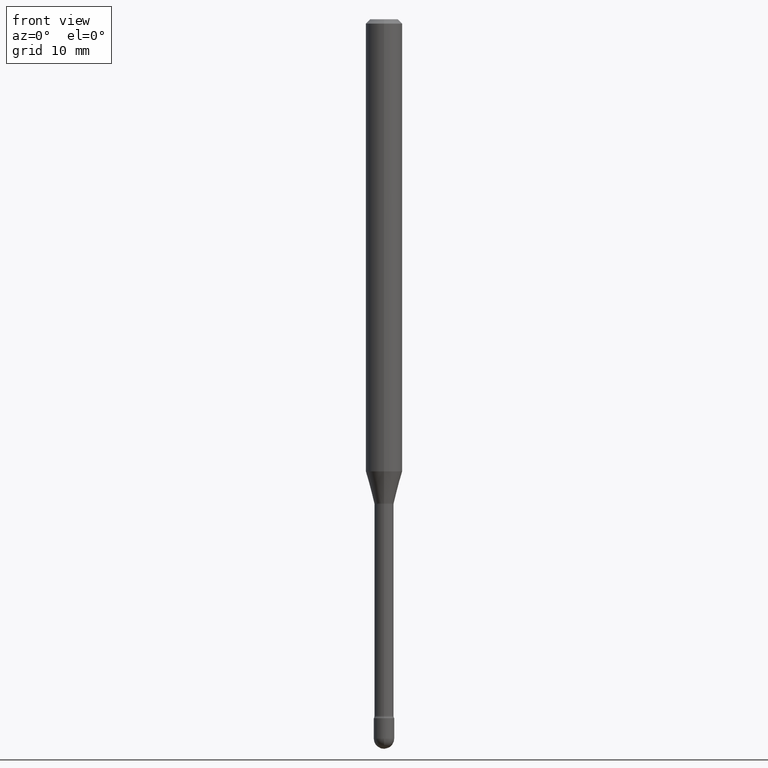
[diagram: clean part render]
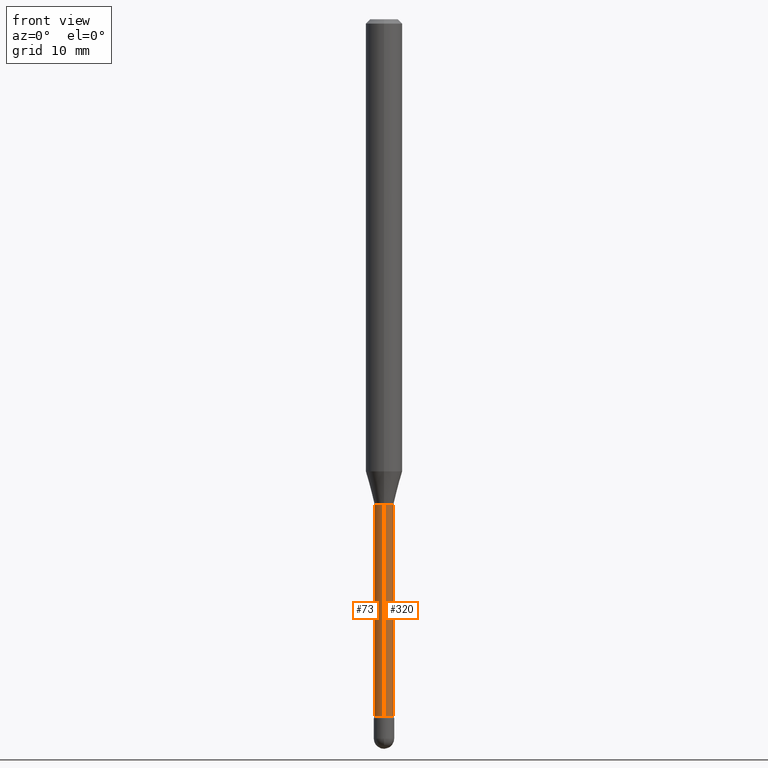
[diagram: same view with one multi-face feature highlighted, each face labeled with its STEP entity id]
A machine part, front view. The highlighted faces form ONE feature: a constant-radius fillet chain: 2 tangent blend faces with common blend radius 0.8357 mm. The faces share edges in the B-rep.
Their STEP definitions:
[1] entity #320 (Cylinder):
#9 = CARTESIAN_POINT ( 'NONE',  ( -2.297394720958201714E-16, -0.03290000000000839475, -2.387345589506696175 ) ) ;
#39 = EDGE_LOOP ( 'NONE', ( #317, #230, #218, #44 ) ) ;
#43 = CARTESIAN_POINT ( 'NONE',  ( -2.297394720958783499E-16, -0.03290000000000003338, 5.929417908583188261E-16 ) ) ;
#44 = ORIENTED_EDGE ( 'NONE', *, *, #298, .F. ) ;
#46 = VECTOR ( 'NONE', #168, 39.37007874015748143 ) ;
#61 = CARTESIAN_POINT ( 'NONE',  ( 4.064354911995957945E-29, -5.802686058534508984E-15, -1.661974787463811332 ) ) ;
#78 = LINE ( 'NONE', #43, #46 ) ;
#83 = VERTEX_POINT ( 'NONE', #557 ) ;
#101 = EDGE_CURVE ( 'NONE', #170, #83, #552, .T. ) ;
#117 = EDGE_CURVE ( 'NONE', #221, #83, #214, .T. ) ;
#145 = DIRECTION ( 'NONE',  ( -2.445497334046926588E-29, 3.491440485321357579E-15, 1.000000000000000000 ) ) ;
#149 = VECTOR ( 'NONE', #507, 39.37007874015748143 ) ;
#168 = DIRECTION ( 'NONE',  ( -2.445497334046926869E-29, 3.491440485321357184E-15, 1.000000000000000000 ) ) ;
#170 = VERTEX_POINT ( 'NONE', #470 ) ;
#214 = CIRCLE ( 'NONE', #463, 0.03289999999999999869 ) ;
#218 = ORIENTED_EDGE ( 'NONE', *, *, #117, .F. ) ;
#221 = VERTEX_POINT ( 'NONE', #562 ) ;
#230 = ORIENTED_EDGE ( 'NONE', *, *, #101, .T. ) ;
#247 = AXIS2_PLACEMENT_3D ( 'NONE', #322, #145, #415 ) ;
#251 = DIRECTION ( 'NONE',  ( -2.445497334046926588E-29, 3.491440485321357579E-15, 1.000000000000000000 ) ) ;
#266 = CARTESIAN_POINT ( 'NONE',  ( -1.169113584055446105E-44, 1.669184350826100908E-30, 4.780733988912460139E-16 ) ) ;
#280 = DIRECTION ( 'NONE',  ( -2.445497334046926588E-29, 3.491440485321357579E-15, 1.000000000000000000 ) ) ;
#298 = EDGE_CURVE ( 'NONE', #368, #221, #78, .T. ) ;
#317 = ORIENTED_EDGE ( 'NONE', *, *, #430, .T. ) ;
#320 = ADVANCED_FACE ( 'NONE', ( #351 ), #477, .T. ) ;
#322 = CARTESIAN_POINT ( 'NONE',  ( 5.838247274587313362E-29, -8.335275043657060680E-15, -2.387345589506696175 ) ) ;
#323 = CIRCLE ( 'NONE', #247, 0.03290000000000006114 ) ;
#351 = FACE_OUTER_BOUND ( 'NONE', #39, .T. ) ;
#368 = VERTEX_POINT ( 'NONE', #9 ) ;
#379 = AXIS2_PLACEMENT_3D ( 'NONE', #266, #280, #457 ) ;
#415 = DIRECTION ( 'NONE',  ( -6.982962677686266711E-15, -1.000000000000000000, 0.000000000000000000 ) ) ;
#425 = CARTESIAN_POINT ( 'NONE',  ( 2.337685600650731491E-16, 0.03290000000000003338, 3.632050069241733003E-16 ) ) ;
#430 = EDGE_CURVE ( 'NONE', #368, #170, #323, .T. ) ;
#435 = DIRECTION ( 'NONE',  ( -6.982962677686266711E-15, -1.000000000000000000, 0.000000000000000000 ) ) ;
#457 = DIRECTION ( 'NONE',  ( -6.982962677686265133E-15, -1.000000000000000000, 3.491440485321357973E-15 ) ) ;
#463 = AXIS2_PLACEMENT_3D ( 'NONE', #61, #251, #435 ) ;
#470 = CARTESIAN_POINT ( 'NONE',  ( 2.412292587906127904E-16, 0.03289999999999172753, -2.387345589506696175 ) ) ;
#477 = CYLINDRICAL_SURFACE ( 'NONE', #379, 0.03290000000000003338 ) ;
#507 = DIRECTION ( 'NONE',  ( -2.445497334046926869E-29, 3.491440485321357184E-15, 1.000000000000000000 ) ) ;
#552 = LINE ( 'NONE', #425, #149 ) ;
#557 = CARTESIAN_POINT ( 'NONE',  ( 2.337685600651315248E-16, 0.03289999999999419777, -1.661974787463811332 ) ) ;
#562 = CARTESIAN_POINT ( 'NONE',  ( -2.297394720958375264E-16, -0.03290000000000579961, -1.661974787463811332 ) ) ;
[2] entity #73 (Cylinder):
#9 = CARTESIAN_POINT ( 'NONE',  ( -2.297394720958201714E-16, -0.03290000000000839475, -2.387345589506696175 ) ) ;
#43 = CARTESIAN_POINT ( 'NONE',  ( -2.297394720958783499E-16, -0.03290000000000003338, 5.929417908583188261E-16 ) ) ;
#46 = VECTOR ( 'NONE', #168, 39.37007874015748143 ) ;
#56 = EDGE_CURVE ( 'NONE', #83, #221, #301, .T. ) ;
#73 = ADVANCED_FACE ( 'NONE', ( #341 ), #383, .T. ) ;
#78 = LINE ( 'NONE', #43, #46 ) ;
#83 = VERTEX_POINT ( 'NONE', #557 ) ;
#101 = EDGE_CURVE ( 'NONE', #170, #83, #552, .T. ) ;
#116 = DIRECTION ( 'NONE',  ( -6.982962677686266711E-15, -1.000000000000000000, 0.000000000000000000 ) ) ;
#149 = VECTOR ( 'NONE', #507, 39.37007874015748143 ) ;
#168 = DIRECTION ( 'NONE',  ( -2.445497334046926869E-29, 3.491440485321357184E-15, 1.000000000000000000 ) ) ;
#170 = VERTEX_POINT ( 'NONE', #470 ) ;
#198 = CARTESIAN_POINT ( 'NONE',  ( 5.838247274587313362E-29, -8.335275043657060680E-15, -2.387345589506696175 ) ) ;
#201 = DIRECTION ( 'NONE',  ( -2.445497334046926588E-29, 3.491440485321357579E-15, 1.000000000000000000 ) ) ;
#221 = VERTEX_POINT ( 'NONE', #562 ) ;
#227 = EDGE_LOOP ( 'NONE', ( #355, #276, #418, #482 ) ) ;
#253 = CARTESIAN_POINT ( 'NONE',  ( 4.064354911995957945E-29, -5.802686058534508984E-15, -1.661974787463811332 ) ) ;
#265 = AXIS2_PLACEMENT_3D ( 'NONE', #395, #468, #513 ) ;
#276 = ORIENTED_EDGE ( 'NONE', *, *, #332, .T. ) ;
#284 = AXIS2_PLACEMENT_3D ( 'NONE', #198, #544, #535 ) ;
#298 = EDGE_CURVE ( 'NONE', #368, #221, #78, .T. ) ;
#301 = CIRCLE ( 'NONE', #348, 0.03289999999999999869 ) ;
#332 = EDGE_CURVE ( 'NONE', #170, #368, #528, .T. ) ;
#341 = FACE_OUTER_BOUND ( 'NONE', #227, .T. ) ;
#348 = AXIS2_PLACEMENT_3D ( 'NONE', #253, #201, #116 ) ;
#355 = ORIENTED_EDGE ( 'NONE', *, *, #101, .F. ) ;
#368 = VERTEX_POINT ( 'NONE', #9 ) ;
#383 = CYLINDRICAL_SURFACE ( 'NONE', #265, 0.03290000000000003338 ) ;
#395 = CARTESIAN_POINT ( 'NONE',  ( -1.169113584055446105E-44, 1.669184350826100908E-30, 4.780733988912460139E-16 ) ) ;
#418 = ORIENTED_EDGE ( 'NONE', *, *, #298, .T. ) ;
#425 = CARTESIAN_POINT ( 'NONE',  ( 2.337685600650731491E-16, 0.03290000000000003338, 3.632050069241733003E-16 ) ) ;
#468 = DIRECTION ( 'NONE',  ( -2.445497334046926588E-29, 3.491440485321357579E-15, 1.000000000000000000 ) ) ;
#470 = CARTESIAN_POINT ( 'NONE',  ( 2.412292587906127904E-16, 0.03289999999999172753, -2.387345589506696175 ) ) ;
#482 = ORIENTED_EDGE ( 'NONE', *, *, #56, .F. ) ;
#507 = DIRECTION ( 'NONE',  ( -2.445497334046926869E-29, 3.491440485321357184E-15, 1.000000000000000000 ) ) ;
#513 = DIRECTION ( 'NONE',  ( -6.982962677686265133E-15, -1.000000000000000000, 3.491440485321357973E-15 ) ) ;
#528 = CIRCLE ( 'NONE', #284, 0.03290000000000006114 ) ;
#535 = DIRECTION ( 'NONE',  ( -6.982962677686266711E-15, -1.000000000000000000, 0.000000000000000000 ) ) ;
#544 = DIRECTION ( 'NONE',  ( -2.445497334046926588E-29, 3.491440485321357579E-15, 1.000000000000000000 ) ) ;
#552 = LINE ( 'NONE', #425, #149 ) ;
#557 = CARTESIAN_POINT ( 'NONE',  ( 2.337685600651315248E-16, 0.03289999999999419777, -1.661974787463811332 ) ) ;
#562 = CARTESIAN_POINT ( 'NONE',  ( -2.297394720958375264E-16, -0.03290000000000579961, -1.661974787463811332 ) ) ;